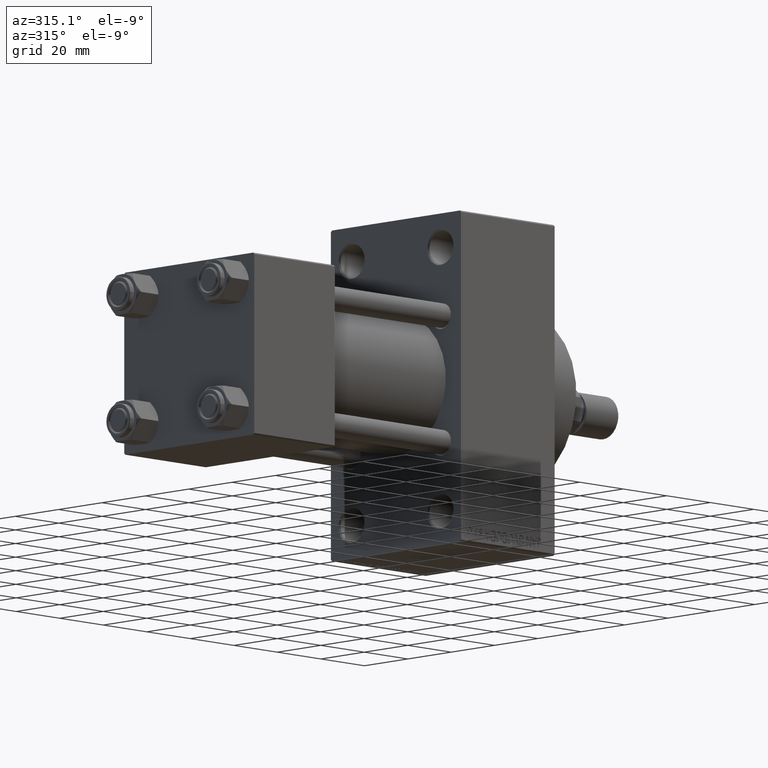
[diagram: clean part render]
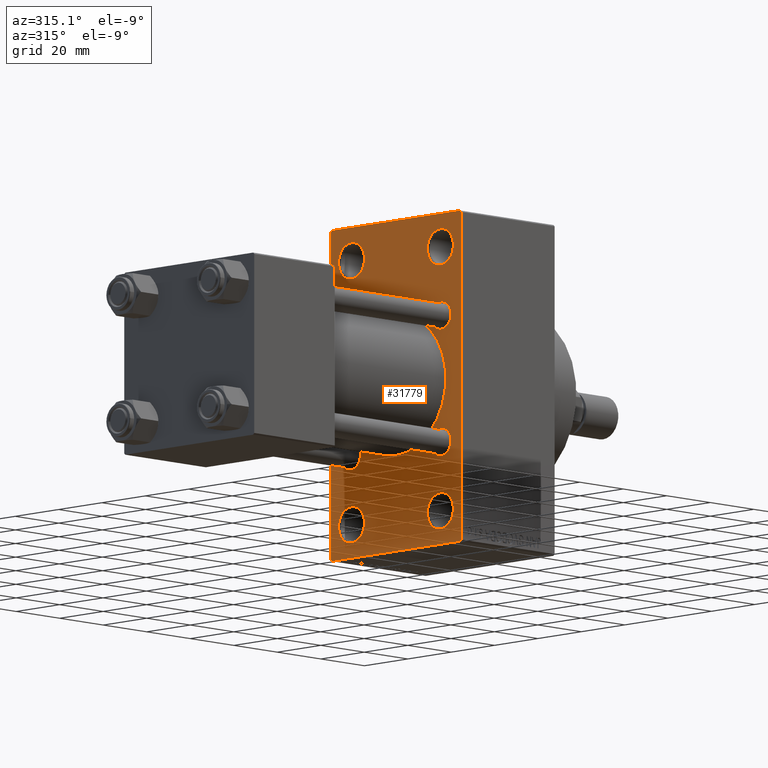
[diagram: same view with one face highlighted and labeled with its STEP entity id]
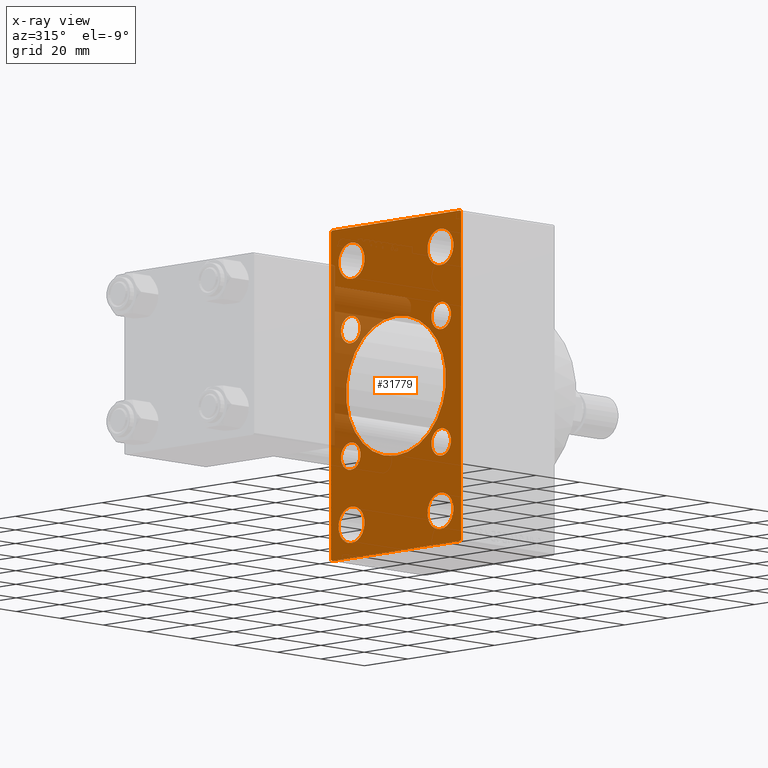
[diagram: x-ray of the same camera — body ghosted, the highlighted face saturated]
A machine part, auxiliary view. The second image highlights one B-rep face of the part: STEP entity #31779.
The next image is the same camera in x-ray: the body ghosted, the highlighted face saturated — about 18% of this face is hidden behind the body in this view.
In plain terms, the highlighted planar face has unit normal (-1, 0, 0).
Its self-contained STEP definition (entity closure, byte-faithful):
#110 = DIRECTION ( 'NONE',  ( 0.000000000000000000, 0.000000000000000000, -1.000000000000000000 ) ) ;
#140 = DIRECTION ( 'NONE',  ( 1.000000000000000000, -0.000000000000000000, 0.000000000000000000 ) ) ;
#269 = DIRECTION ( 'NONE',  ( 0.000000000000000000, 0.000000000000000000, -1.000000000000000000 ) ) ;
#432 = CARTESIAN_POINT ( 'NONE',  ( 95.00000000000000000, 29.99999999999999645, -54.49999999999999289 ) ) ;
#966 = ORIENTED_EDGE ( 'NONE', *, *, #33504, .T. ) ;
#1162 = DIRECTION ( 'NONE',  ( 0.000000000000000000, -1.000000000000000000, 1.156482317317871478E-16 ) ) ;
#1348 = ORIENTED_EDGE ( 'NONE', *, *, #39769, .T. ) ;
#1569 = CARTESIAN_POINT ( 'NONE',  ( 95.00000000000000000, 20.50000000000000000, -49.49999999999989342 ) ) ;
#1752 = DIRECTION ( 'NONE',  ( 0.000000000000000000, 0.000000000000000000, 1.000000000000000000 ) ) ;
#1765 = DIRECTION ( 'NONE',  ( -0.000000000000000000, -0.7071067811865474617, -0.7071067811865474617 ) ) ;
#1793 = EDGE_CURVE ( 'NONE', #13583, #47540, #44456, .T. ) ;
#1988 = DIRECTION ( 'NONE',  ( 1.000000000000000000, -0.000000000000000000, 0.000000000000000000 ) ) ;
#1994 = DIRECTION ( 'NONE',  ( 0.000000000000000000, 0.000000000000000000, 1.000000000000000000 ) ) ;
#2052 = DIRECTION ( 'NONE',  ( 1.000000000000000000, -0.000000000000000000, 0.000000000000000000 ) ) ;
#2202 = DIRECTION ( 'NONE',  ( 1.000000000000000000, -0.000000000000000000, 0.000000000000000000 ) ) ;
#2309 = CIRCLE ( 'NONE', #13070, 4.500000000000007105 ) ;
#2339 = AXIS2_PLACEMENT_3D ( 'NONE', #39071, #47256, #9636 ) ;
#2457 = EDGE_LOOP ( 'NONE', ( #47591, #38606 ) ) ;
#2459 = FACE_BOUND ( 'NONE', #34784, .T. ) ;
#2584 = CARTESIAN_POINT ( 'NONE',  ( 95.00000000000000000, 20.50000000000000000, -43.50000000000000000 ) ) ;
#2740 = EDGE_LOOP ( 'NONE', ( #23109, #34831 ) ) ;
#3250 = CARTESIAN_POINT ( 'NONE',  ( 95.00000000000000000, 20.50000000000000000, -37.50000000000009948 ) ) ;
#3669 = AXIS2_PLACEMENT_3D ( 'NONE', #28708, #43430, #25569 ) ;
#3689 = CARTESIAN_POINT ( 'NONE',  ( 95.00000000000000000, -30.00000000000000000, 54.50000000000000000 ) ) ;
#3810 = ORIENTED_EDGE ( 'NONE', *, *, #17310, .T. ) ;
#4551 = VERTEX_POINT ( 'NONE', #10975 ) ;
#4975 = AXIS2_PLACEMENT_3D ( 'NONE', #5796, #2202, #31610 ) ;
#5025 = EDGE_CURVE ( 'NONE', #5582, #30330, #42970, .T. ) ;
#5173 = VERTEX_POINT ( 'NONE', #40512 ) ;
#5293 = DIRECTION ( 'NONE',  ( 0.000000000000000000, 0.000000000000000000, 1.000000000000000000 ) ) ;
#5582 = VERTEX_POINT ( 'NONE', #38521 ) ;
#5598 = CARTESIAN_POINT ( 'NONE',  ( 95.00000000000000000, 20.50000000000000000, -43.50000000000000000 ) ) ;
#5796 = CARTESIAN_POINT ( 'NONE',  ( 95.00000000000000000, -20.50000000000000000, 43.50000000000000000 ) ) ;
#5827 = DIRECTION ( 'NONE',  ( -1.000000000000000000, 0.000000000000000000, -0.000000000000000000 ) ) ;
#6028 = EDGE_CURVE ( 'NONE', #6247, #8903, #37602, .T. ) ;
#6247 = VERTEX_POINT ( 'NONE', #45102 ) ;
#6315 = CARTESIAN_POINT ( 'NONE',  ( 95.00000000000000000, -20.84999999999999076, 20.85000000000000497 ) ) ;
#6555 = CIRCLE ( 'NONE', #25810, 23.00000000000000000 ) ;
#6669 = CARTESIAN_POINT ( 'NONE',  ( 95.00000000000000000, -30.00000000000000000, 53.99999999999997158 ) ) ;
#6818 = CARTESIAN_POINT ( 'NONE',  ( 95.00000000000000000, 20.84999999999999787, -20.85000000000000142 ) ) ;
#6932 = AXIS2_PLACEMENT_3D ( 'NONE', #6971, #25556, #44124 ) ;
#6971 = CARTESIAN_POINT ( 'NONE',  ( 95.00000000000000000, -20.84999999999999076, -20.85000000000000497 ) ) ;
#7062 = VERTEX_POINT ( 'NONE', #33434 ) ;
#7337 = AXIS2_PLACEMENT_3D ( 'NONE', #20383, #2052, #19431 ) ;
#7398 = ORIENTED_EDGE ( 'NONE', *, *, #40539, .T. ) ;
#7581 = CARTESIAN_POINT ( 'NONE',  ( 95.00000000000000000, 20.50000000000000000, 49.49999999999989342 ) ) ;
#7767 = CIRCLE ( 'NONE', #21638, 5.999999999999894307 ) ;
#8058 = EDGE_CURVE ( 'NONE', #26023, #31522, #11450, .T. ) ;
#8253 = CARTESIAN_POINT ( 'NONE',  ( 95.00000000000000000, 20.50000000000000000, 43.50000000000000000 ) ) ;
#8903 = VERTEX_POINT ( 'NONE', #38569 ) ;
#9124 = CARTESIAN_POINT ( 'NONE',  ( 95.00000000000000000, 20.84999999999999787, -16.34999999999999432 ) ) ;
#9309 = CARTESIAN_POINT ( 'NONE',  ( 95.00000000000000000, -20.50000000000000000, 49.49999999999989342 ) ) ;
#9451 = FACE_BOUND ( 'NONE', #33110, .T. ) ;
#9495 = VERTEX_POINT ( 'NONE', #22401 ) ;
#9497 = CARTESIAN_POINT ( 'NONE',  ( 95.00000000000000000, -20.50000000000000000, 37.50000000000009948 ) ) ;
#9636 = DIRECTION ( 'NONE',  ( 0.000000000000000000, 0.000000000000000000, 1.000000000000000000 ) ) ;
#9646 = DIRECTION ( 'NONE',  ( 0.000000000000000000, 0.7071067811865279218, -0.7071067811865671127 ) ) ;
#9965 = AXIS2_PLACEMENT_3D ( 'NONE', #6818, #10440, #13601 ) ;
#10231 = VECTOR ( 'NONE', #1162, 1000.000000000000000 ) ;
#10289 = VERTEX_POINT ( 'NONE', #33606 ) ;
#10440 = DIRECTION ( 'NONE',  ( 1.000000000000000000, -0.000000000000000000, 0.000000000000000000 ) ) ;
#10495 = AXIS2_PLACEMENT_3D ( 'NONE', #8253, #37704, #29484 ) ;
#10790 = CIRCLE ( 'NONE', #20054, 5.999999999999894307 ) ;
#10832 = LINE ( 'NONE', #43170, #21014 ) ;
#10975 = CARTESIAN_POINT ( 'NONE',  ( 95.00000000000000000, 29.99999999999999645, -53.99999999999999289 ) ) ;
#11327 = ORIENTED_EDGE ( 'NONE', *, *, #8058, .T. ) ;
#11404 = DIRECTION ( 'NONE',  ( 0.000000000000000000, 0.000000000000000000, -1.000000000000000000 ) ) ;
#11450 = CIRCLE ( 'NONE', #13771, 4.500000000000007105 ) ;
#11738 = EDGE_CURVE ( 'NONE', #31522, #26023, #15422, .T. ) ;
#11754 = ORIENTED_EDGE ( 'NONE', *, *, #6028, .T. ) ;
#12547 = CARTESIAN_POINT ( 'NONE',  ( 95.00000000000000000, 42.00000000000082423, 41.99999999999849365 ) ) ;
#12829 = FACE_BOUND ( 'NONE', #33002, .T. ) ;
#13050 = CARTESIAN_POINT ( 'NONE',  ( 95.00000000000000000, -20.50000000000000000, -49.49999999999989342 ) ) ;
#13070 = AXIS2_PLACEMENT_3D ( 'NONE', #30271, #140, #40664 ) ;
#13077 = PLANE ( 'NONE',  #18859 ) ;
#13101 = AXIS2_PLACEMENT_3D ( 'NONE', #5598, #1988, #1752 ) ;
#13558 = EDGE_CURVE ( 'NONE', #16576, #44330, #33788, .T. ) ;
#13583 = VERTEX_POINT ( 'NONE', #6669 ) ;
#13601 = DIRECTION ( 'NONE',  ( 0.000000000000000000, 0.000000000000000000, 1.000000000000000000 ) ) ;
#13771 = AXIS2_PLACEMENT_3D ( 'NONE', #20410, #35839, #35128 ) ;
#13832 = EDGE_CURVE ( 'NONE', #4551, #7062, #27324, .T. ) ;
#14121 = EDGE_CURVE ( 'NONE', #25451, #4551, #37666, .T. ) ;
#15012 = EDGE_CURVE ( 'NONE', #42291, #47594, #36142, .T. ) ;
#15250 = VERTEX_POINT ( 'NONE', #29478 ) ;
#15422 = CIRCLE ( 'NONE', #6932, 4.500000000000007105 ) ;
#15427 = CARTESIAN_POINT ( 'NONE',  ( 95.00000000000000000, 20.50000000000000000, 43.50000000000000000 ) ) ;
#15871 = CARTESIAN_POINT ( 'NONE',  ( 95.00000000000000000, 29.99999999999999645, 54.49999999999999289 ) ) ;
#16160 = AXIS2_PLACEMENT_3D ( 'NONE', #34974, #31096, #5293 ) ;
#16304 = EDGE_CURVE ( 'NONE', #43200, #47245, #40809, .T. ) ;
#16442 = DIRECTION ( 'NONE',  ( 0.000000000000000000, 0.000000000000000000, 1.000000000000000000 ) ) ;
#16445 = FACE_BOUND ( 'NONE', #2457, .T. ) ;
#16493 = EDGE_CURVE ( 'NONE', #47594, #42291, #31585, .T. ) ;
#16576 = VERTEX_POINT ( 'NONE', #19010 ) ;
#16622 = EDGE_LOOP ( 'NONE', ( #7398, #1348 ) ) ;
#16802 = EDGE_CURVE ( 'NONE', #47357, #35469, #10790, .T. ) ;
#17164 = DIRECTION ( 'NONE',  ( -0.000000000000000000, 0.000000000000000000, 1.000000000000000000 ) ) ;
#17291 = DIRECTION ( 'NONE',  ( 0.000000000000000000, 0.000000000000000000, 1.000000000000000000 ) ) ;
#17310 = EDGE_CURVE ( 'NONE', #35469, #47357, #44673, .T. ) ;
#17430 = CARTESIAN_POINT ( 'NONE',  ( 95.00000000000000000, 29.99999999999999645, 53.99999999999999289 ) ) ;
#17598 = DIRECTION ( 'NONE',  ( 0.000000000000000000, -0.7071067811865352493, 0.7071067811865597852 ) ) ;
#17677 = ORIENTED_EDGE ( 'NONE', *, *, #40967, .T. ) ;
#17825 = LINE ( 'NONE', #432, #37255 ) ;
#18434 = ORIENTED_EDGE ( 'NONE', *, *, #14121, .T. ) ;
#18635 = EDGE_CURVE ( 'NONE', #26703, #5173, #7767, .T. ) ;
#18859 = AXIS2_PLACEMENT_3D ( 'NONE', #34786, #5827, #17164 ) ;
#19010 = CARTESIAN_POINT ( 'NONE',  ( 95.00000000000000000, 2.146024240737012665E-16, -23.00000000000000000 ) ) ;
#19431 = DIRECTION ( 'NONE',  ( 0.000000000000000000, 0.000000000000000000, 1.000000000000000000 ) ) ;
#19826 = CARTESIAN_POINT ( 'NONE',  ( 95.00000000000000000, 20.84999999999999787, 20.85000000000000142 ) ) ;
#20054 = AXIS2_PLACEMENT_3D ( 'NONE', #2584, #31998, #17291 ) ;
#20209 = LINE ( 'NONE', #15871, #10231 ) ;
#20383 = CARTESIAN_POINT ( 'NONE',  ( 95.00000000000000000, 20.84999999999999787, 20.85000000000000142 ) ) ;
#20410 = CARTESIAN_POINT ( 'NONE',  ( 95.00000000000000000, -20.84999999999999076, -20.85000000000000497 ) ) ;
#20474 = CARTESIAN_POINT ( 'NONE',  ( 95.00000000000000000, -2.602085213965210642E-15, 0.000000000000000000 ) ) ;
#20495 = VECTOR ( 'NONE', #33416, 1000.000000000000114 ) ;
#20530 = CIRCLE ( 'NONE', #10495, 5.999999999999894307 ) ;
#20900 = VERTEX_POINT ( 'NONE', #38560 ) ;
#21014 = VECTOR ( 'NONE', #17598, 1000.000000000000000 ) ;
#21249 = CARTESIAN_POINT ( 'NONE',  ( 95.00000000000000000, -2.602085213965210642E-15, 23.00000000000000000 ) ) ;
#21638 = AXIS2_PLACEMENT_3D ( 'NONE', #15427, #26752, #37138 ) ;
#22337 = ORIENTED_EDGE ( 'NONE', *, *, #11738, .T. ) ;
#22401 = CARTESIAN_POINT ( 'NONE',  ( 95.00000000000000000, -20.84999999999999076, 25.35000000000001208 ) ) ;
#23109 = ORIENTED_EDGE ( 'NONE', *, *, #15012, .T. ) ;
#23175 = CARTESIAN_POINT ( 'NONE',  ( 95.00000000000000000, 29.50000000000002132, 54.49999999999999289 ) ) ;
#23249 = CARTESIAN_POINT ( 'NONE',  ( 95.00000000000000000, 20.84999999999999787, -25.35000000000000853 ) ) ;
#23307 = EDGE_CURVE ( 'NONE', #39112, #25451, #23409, .T. ) ;
#23409 = LINE ( 'NONE', #12547, #40254 ) ;
#23442 = EDGE_CURVE ( 'NONE', #10289, #47540, #10832, .T. ) ;
#23468 = CARTESIAN_POINT ( 'NONE',  ( 95.00000000000000000, -20.50000000000000000, -43.50000000000000000 ) ) ;
#23607 = EDGE_CURVE ( 'NONE', #39112, #15250, #20209, .T. ) ;
#23620 = ORIENTED_EDGE ( 'NONE', *, *, #23307, .T. ) ;
#24193 = CARTESIAN_POINT ( 'NONE',  ( 95.00000000000000000, 41.99999999999998579, -41.99999999999998579 ) ) ;
#24539 = CIRCLE ( 'NONE', #46197, 4.500000000000007105 ) ;
#24693 = ORIENTED_EDGE ( 'NONE', *, *, #28357, .T. ) ;
#24786 = DIRECTION ( 'NONE',  ( 1.000000000000000000, 0.000000000000000000, 0.000000000000000000 ) ) ;
#25146 = ORIENTED_EDGE ( 'NONE', *, *, #16802, .T. ) ;
#25288 = ORIENTED_EDGE ( 'NONE', *, *, #23607, .F. ) ;
#25451 = VERTEX_POINT ( 'NONE', #17430 ) ;
#25556 = DIRECTION ( 'NONE',  ( 1.000000000000000000, -0.000000000000000000, 0.000000000000000000 ) ) ;
#25569 = DIRECTION ( 'NONE',  ( 0.000000000000000000, 0.000000000000000000, 1.000000000000000000 ) ) ;
#25810 = AXIS2_PLACEMENT_3D ( 'NONE', #20474, #42417, #110 ) ;
#26023 = VERTEX_POINT ( 'NONE', #37739 ) ;
#26703 = VERTEX_POINT ( 'NONE', #7581 ) ;
#26752 = DIRECTION ( 'NONE',  ( 1.000000000000000000, -0.000000000000000000, 0.000000000000000000 ) ) ;
#27097 = CARTESIAN_POINT ( 'NONE',  ( 95.00000000000000000, -30.00000000000000000, -53.99999999999998579 ) ) ;
#27295 = FACE_BOUND ( 'NONE', #16622, .T. ) ;
#27324 = LINE ( 'NONE', #24193, #47675 ) ;
#28233 = ORIENTED_EDGE ( 'NONE', *, *, #43005, .T. ) ;
#28357 = EDGE_CURVE ( 'NONE', #7062, #10289, #17825, .T. ) ;
#28400 = CARTESIAN_POINT ( 'NONE',  ( 95.00000000000000000, -2.602085213965210642E-15, 0.000000000000000000 ) ) ;
#28708 = CARTESIAN_POINT ( 'NONE',  ( 95.00000000000000000, -20.50000000000000000, -43.50000000000000000 ) ) ;
#28939 = CIRCLE ( 'NONE', #7337, 4.500000000000007105 ) ;
#29478 = CARTESIAN_POINT ( 'NONE',  ( 95.00000000000000000, -29.49999999999997513, 54.50000000000000000 ) ) ;
#29484 = DIRECTION ( 'NONE',  ( 0.000000000000000000, 0.000000000000000000, 1.000000000000000000 ) ) ;
#29680 = CARTESIAN_POINT ( 'NONE',  ( 95.00000000000000000, 29.99999999999999645, 54.49999999999999289 ) ) ;
#29704 = EDGE_LOOP ( 'NONE', ( #24693, #41060, #34789, #40415, #25288, #23620, #18434, #38393 ) ) ;
#30196 = ORIENTED_EDGE ( 'NONE', *, *, #34795, .T. ) ;
#30271 = CARTESIAN_POINT ( 'NONE',  ( 95.00000000000000000, -20.84999999999999076, 20.85000000000000497 ) ) ;
#30330 = VERTEX_POINT ( 'NONE', #13050 ) ;
#30799 = EDGE_LOOP ( 'NONE', ( #11754, #966 ) ) ;
#31096 = DIRECTION ( 'NONE',  ( 1.000000000000000000, -0.000000000000000000, 0.000000000000000000 ) ) ;
#31522 = VERTEX_POINT ( 'NONE', #42658 ) ;
#31585 = CIRCLE ( 'NONE', #2339, 4.500000000000007105 ) ;
#31610 = DIRECTION ( 'NONE',  ( 0.000000000000000000, 0.000000000000000000, 1.000000000000000000 ) ) ;
#31656 = DIRECTION ( 'NONE',  ( 1.000000000000000000, -0.000000000000000000, 0.000000000000000000 ) ) ;
#31779 = ADVANCED_FACE ( 'NONE', ( #16445, #9451, #42255, #46121, #27295, #42008, #39120, #2459, #12829, #38643 ), #13077, .T. ) ;
#31998 = DIRECTION ( 'NONE',  ( 1.000000000000000000, -0.000000000000000000, 0.000000000000000000 ) ) ;
#32995 = ORIENTED_EDGE ( 'NONE', *, *, #13558, .T. ) ;
#33002 = EDGE_LOOP ( 'NONE', ( #28233, #32995 ) ) ;
#33110 = EDGE_LOOP ( 'NONE', ( #35682, #17677 ) ) ;
#33416 = DIRECTION ( 'NONE',  ( -0.000000000000000000, 0.7071067811865451302, 0.7071067811865500152 ) ) ;
#33434 = CARTESIAN_POINT ( 'NONE',  ( 95.00000000000000000, 29.49999999999999645, -54.49999999999999289 ) ) ;
#33504 = EDGE_CURVE ( 'NONE', #8903, #6247, #28939, .T. ) ;
#33606 = CARTESIAN_POINT ( 'NONE',  ( 95.00000000000000000, -29.50000000000000355, -54.50000000000000000 ) ) ;
#33788 = CIRCLE ( 'NONE', #36894, 23.00000000000000000 ) ;
#34783 = DIRECTION ( 'NONE',  ( 1.000000000000000000, -0.000000000000000000, 0.000000000000000000 ) ) ;
#34784 = EDGE_LOOP ( 'NONE', ( #11327, #22337 ) ) ;
#34786 = CARTESIAN_POINT ( 'NONE',  ( 95.00000000000000000, 0.000000000000000000, 0.000000000000000000 ) ) ;
#34789 = ORIENTED_EDGE ( 'NONE', *, *, #1793, .F. ) ;
#34795 = EDGE_CURVE ( 'NONE', #5173, #26703, #20530, .T. ) ;
#34831 = ORIENTED_EDGE ( 'NONE', *, *, #16493, .T. ) ;
#34974 = CARTESIAN_POINT ( 'NONE',  ( 95.00000000000000000, -20.50000000000000000, 43.50000000000000000 ) ) ;
#34997 = AXIS2_PLACEMENT_3D ( 'NONE', #23468, #31656, #1994 ) ;
#35051 = DIRECTION ( 'NONE',  ( 0.000000000000000000, 0.000000000000000000, 1.000000000000000000 ) ) ;
#35128 = DIRECTION ( 'NONE',  ( 0.000000000000000000, 0.000000000000000000, 1.000000000000000000 ) ) ;
#35299 = DIRECTION ( 'NONE',  ( 1.000000000000000000, -0.000000000000000000, 0.000000000000000000 ) ) ;
#35469 = VERTEX_POINT ( 'NONE', #1569 ) ;
#35682 = ORIENTED_EDGE ( 'NONE', *, *, #5025, .T. ) ;
#35839 = DIRECTION ( 'NONE',  ( 1.000000000000000000, -0.000000000000000000, 0.000000000000000000 ) ) ;
#36142 = CIRCLE ( 'NONE', #9965, 4.500000000000007105 ) ;
#36342 = CARTESIAN_POINT ( 'NONE',  ( 95.00000000000000000, -42.00000000000008527, 41.99999999999979394 ) ) ;
#36894 = AXIS2_PLACEMENT_3D ( 'NONE', #28400, #24786, #39974 ) ;
#37138 = DIRECTION ( 'NONE',  ( 0.000000000000000000, 0.000000000000000000, 1.000000000000000000 ) ) ;
#37255 = VECTOR ( 'NONE', #47496, 1000.000000000000000 ) ;
#37602 = CIRCLE ( 'NONE', #43007, 4.500000000000007105 ) ;
#37666 = LINE ( 'NONE', #29680, #41506 ) ;
#37704 = DIRECTION ( 'NONE',  ( 1.000000000000000000, -0.000000000000000000, 0.000000000000000000 ) ) ;
#37739 = CARTESIAN_POINT ( 'NONE',  ( 95.00000000000000000, -20.84999999999999076, -16.34999999999999787 ) ) ;
#38393 = ORIENTED_EDGE ( 'NONE', *, *, #13832, .T. ) ;
#38521 = CARTESIAN_POINT ( 'NONE',  ( 95.00000000000000000, -20.50000000000000000, -37.50000000000009948 ) ) ;
#38560 = CARTESIAN_POINT ( 'NONE',  ( 95.00000000000000000, -20.84999999999999076, 16.34999999999999787 ) ) ;
#38569 = CARTESIAN_POINT ( 'NONE',  ( 95.00000000000000000, 20.84999999999999787, 16.34999999999999432 ) ) ;
#38606 = ORIENTED_EDGE ( 'NONE', *, *, #16304, .T. ) ;
#38643 = FACE_OUTER_BOUND ( 'NONE', #29704, .T. ) ;
#38856 = CIRCLE ( 'NONE', #34997, 5.999999999999894307 ) ;
#39071 = CARTESIAN_POINT ( 'NONE',  ( 95.00000000000000000, 20.84999999999999787, -20.85000000000000142 ) ) ;
#39112 = VERTEX_POINT ( 'NONE', #23175 ) ;
#39120 = FACE_BOUND ( 'NONE', #2740, .T. ) ;
#39769 = EDGE_CURVE ( 'NONE', #20900, #9495, #24539, .T. ) ;
#39974 = DIRECTION ( 'NONE',  ( 0.000000000000000000, 0.000000000000000000, -1.000000000000000000 ) ) ;
#40254 = VECTOR ( 'NONE', #9646, 1000.000000000000000 ) ;
#40415 = ORIENTED_EDGE ( 'NONE', *, *, #45621, .T. ) ;
#40512 = CARTESIAN_POINT ( 'NONE',  ( 95.00000000000000000, 20.50000000000000000, 37.50000000000009948 ) ) ;
#40539 = EDGE_CURVE ( 'NONE', #9495, #20900, #2309, .T. ) ;
#40654 = VECTOR ( 'NONE', #11404, 1000.000000000000000 ) ;
#40664 = DIRECTION ( 'NONE',  ( 0.000000000000000000, 0.000000000000000000, 1.000000000000000000 ) ) ;
#40809 = CIRCLE ( 'NONE', #16160, 5.999999999999894307 ) ;
#40967 = EDGE_CURVE ( 'NONE', #30330, #5582, #38856, .T. ) ;
#41060 = ORIENTED_EDGE ( 'NONE', *, *, #23442, .T. ) ;
#41506 = VECTOR ( 'NONE', #269, 1000.000000000000000 ) ;
#41550 = EDGE_LOOP ( 'NONE', ( #43309, #30196 ) ) ;
#41963 = CIRCLE ( 'NONE', #4975, 5.999999999999894307 ) ;
#42008 = FACE_BOUND ( 'NONE', #30799, .T. ) ;
#42074 = EDGE_CURVE ( 'NONE', #47245, #43200, #41963, .T. ) ;
#42255 = FACE_BOUND ( 'NONE', #47403, .T. ) ;
#42291 = VERTEX_POINT ( 'NONE', #9124 ) ;
#42417 = DIRECTION ( 'NONE',  ( 1.000000000000000000, 0.000000000000000000, 0.000000000000000000 ) ) ;
#42658 = CARTESIAN_POINT ( 'NONE',  ( 95.00000000000000000, -20.84999999999999076, -25.35000000000001208 ) ) ;
#42970 = CIRCLE ( 'NONE', #3669, 5.999999999999894307 ) ;
#43005 = EDGE_CURVE ( 'NONE', #44330, #16576, #6555, .T. ) ;
#43007 = AXIS2_PLACEMENT_3D ( 'NONE', #19826, #34783, #16442 ) ;
#43170 = CARTESIAN_POINT ( 'NONE',  ( 95.00000000000000000, -42.00000000000051159, -41.99999999999905498 ) ) ;
#43200 = VERTEX_POINT ( 'NONE', #9497 ) ;
#43309 = ORIENTED_EDGE ( 'NONE', *, *, #18635, .T. ) ;
#43430 = DIRECTION ( 'NONE',  ( 1.000000000000000000, -0.000000000000000000, 0.000000000000000000 ) ) ;
#44124 = DIRECTION ( 'NONE',  ( 0.000000000000000000, 0.000000000000000000, 1.000000000000000000 ) ) ;
#44330 = VERTEX_POINT ( 'NONE', #21249 ) ;
#44456 = LINE ( 'NONE', #3689, #40654 ) ;
#44525 = LINE ( 'NONE', #36342, #20495 ) ;
#44673 = CIRCLE ( 'NONE', #13101, 5.999999999999894307 ) ;
#45102 = CARTESIAN_POINT ( 'NONE',  ( 95.00000000000000000, 20.84999999999999787, 25.35000000000000853 ) ) ;
#45621 = EDGE_CURVE ( 'NONE', #13583, #15250, #44525, .T. ) ;
#46121 = FACE_BOUND ( 'NONE', #41550, .T. ) ;
#46197 = AXIS2_PLACEMENT_3D ( 'NONE', #6315, #35299, #35051 ) ;
#47245 = VERTEX_POINT ( 'NONE', #9309 ) ;
#47256 = DIRECTION ( 'NONE',  ( 1.000000000000000000, -0.000000000000000000, 0.000000000000000000 ) ) ;
#47357 = VERTEX_POINT ( 'NONE', #3250 ) ;
#47403 = EDGE_LOOP ( 'NONE', ( #25146, #3810 ) ) ;
#47496 = DIRECTION ( 'NONE',  ( 0.000000000000000000, -1.000000000000000000, -1.156482317317871478E-16 ) ) ;
#47540 = VERTEX_POINT ( 'NONE', #27097 ) ;
#47591 = ORIENTED_EDGE ( 'NONE', *, *, #42074, .T. ) ;
#47594 = VERTEX_POINT ( 'NONE', #23249 ) ;
#47675 = VECTOR ( 'NONE', #1765, 1000.000000000000114 ) ;